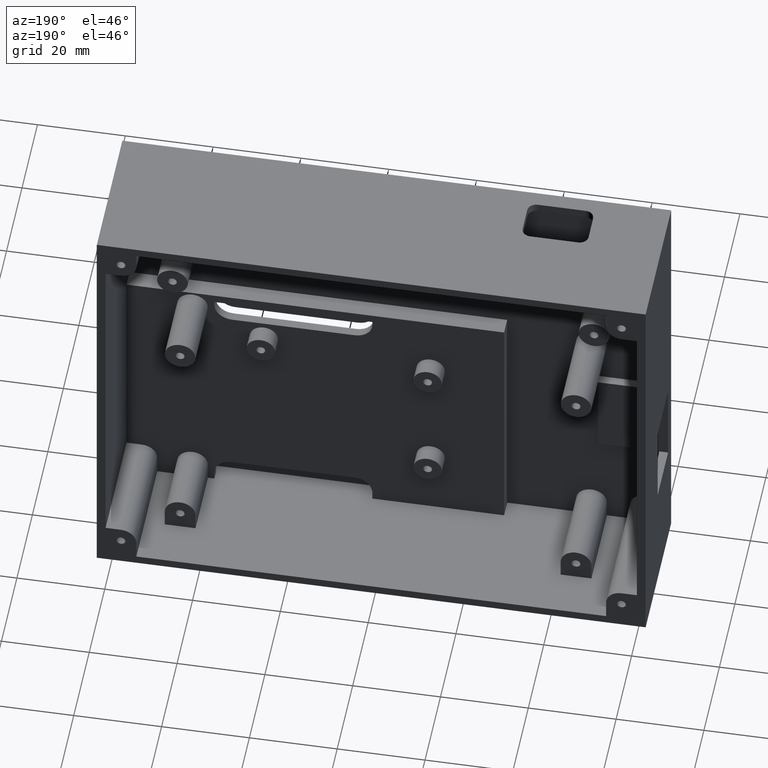
[diagram: clean part render]
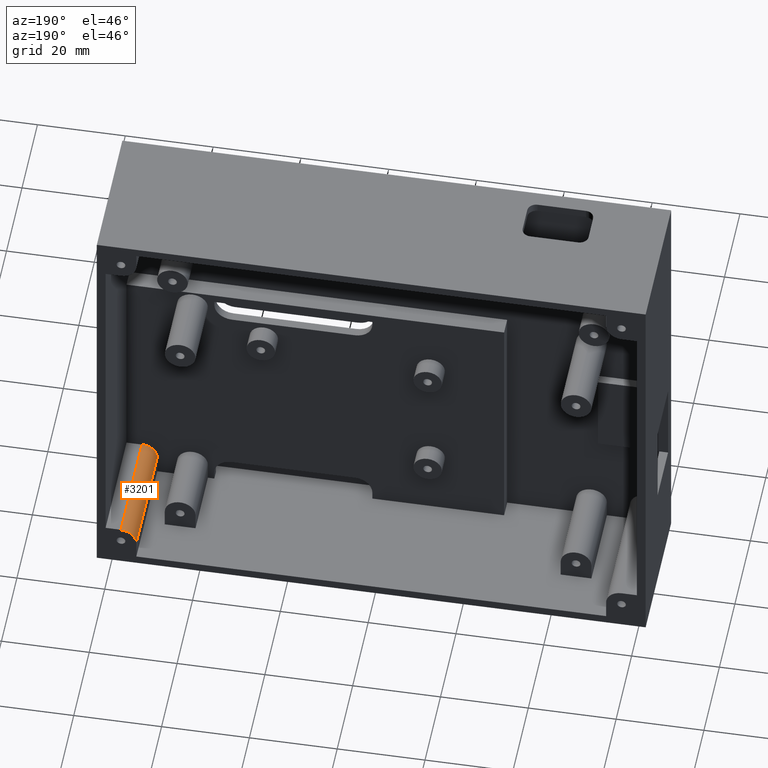
[diagram: same view with one face highlighted and labeled with its STEP entity id]
A machine part, auxiliary view. The second image highlights one B-rep face of the part: STEP entity #3201.
In plain terms, the highlighted cylindrical surface (edge-blend (fillet) strip) has radius 3.5 mm, axis along (-0, -1, -0).
Its self-contained STEP definition (entity closure, byte-faithful):
#170 = CIRCLE ( 'NONE', #2428, 3.500000000000003100 ) ;
#334 = DIRECTION ( 'NONE',  ( -0.0000000000000000000, -1.000000000000000000, -0.0000000000000000000 ) ) ;
#356 = VECTOR ( 'NONE', #2228, 1000.000000000000000 ) ;
#404 = ORIENTED_EDGE ( 'NONE', *, *, #1875, .T. ) ;
#409 = EDGE_LOOP ( 'NONE', ( #2570, #404, #4346, #2044 ) ) ;
#437 = CARTESIAN_POINT ( 'NONE',  ( 37.52967359050448700, 5.999999999999998200, -34.25222551928781900 ) ) ;
#632 = DIRECTION ( 'NONE',  ( 0.0000000000000000000, 0.0000000000000000000, -1.000000000000000000 ) ) ;
#860 = LINE ( 'NONE', #2414, #3856 ) ;
#959 = VERTEX_POINT ( 'NONE', #437 ) ;
#991 = AXIS2_PLACEMENT_3D ( 'NONE', #2026, #2714, #632 ) ;
#998 = EDGE_CURVE ( 'NONE', #1763, #2904, #170, .T. ) ;
#1020 = AXIS2_PLACEMENT_3D ( 'NONE', #2032, #4425, #2383 ) ;
#1187 = FACE_OUTER_BOUND ( 'NONE', #409, .T. ) ;
#1285 = CYLINDRICAL_SURFACE ( 'NONE', #991, 3.500000000000003100 ) ;
#1394 = VERTEX_POINT ( 'NONE', #1478 ) ;
#1478 = CARTESIAN_POINT ( 'NONE',  ( 34.02967359050448000, 6.000000000000000000, -37.75222551928781900 ) ) ;
#1610 = LINE ( 'NONE', #2211, #356 ) ;
#1763 = VERTEX_POINT ( 'NONE', #2036 ) ;
#1875 = EDGE_CURVE ( 'NONE', #1763, #1394, #1610, .T. ) ;
#2026 = CARTESIAN_POINT ( 'NONE',  ( 37.52967359050448700, 42.89949493661167400, -37.75222551928781900 ) ) ;
#2032 = CARTESIAN_POINT ( 'NONE',  ( 37.52967359050448700, 6.000000000000000000, -37.75222551928781900 ) ) ;
#2036 = CARTESIAN_POINT ( 'NONE',  ( 34.02967359050448000, 33.00000000000000000, -37.75222551928781900 ) ) ;
#2044 = ORIENTED_EDGE ( 'NONE', *, *, #3834, .F. ) ;
#2211 = CARTESIAN_POINT ( 'NONE',  ( 34.02967359050448000, 42.89949493661167400, -37.75222551928781900 ) ) ;
#2228 = DIRECTION ( 'NONE',  ( -0.0000000000000000000, -1.000000000000000000, -0.0000000000000000000 ) ) ;
#2383 = DIRECTION ( 'NONE',  ( 0.0000000000000000000, 0.0000000000000000000, 1.000000000000000000 ) ) ;
#2414 = CARTESIAN_POINT ( 'NONE',  ( 37.52967359050448700, 42.89949493661167400, -34.25222551928781900 ) ) ;
#2428 = AXIS2_PLACEMENT_3D ( 'NONE', #4211, #3166, #4179 ) ;
#2570 = ORIENTED_EDGE ( 'NONE', *, *, #998, .F. ) ;
#2628 = EDGE_CURVE ( 'NONE', #1394, #959, #2816, .T. ) ;
#2714 = DIRECTION ( 'NONE',  ( -0.0000000000000000000, -1.000000000000000000, -0.0000000000000000000 ) ) ;
#2816 = CIRCLE ( 'NONE', #1020, 3.500000000000003100 ) ;
#2904 = VERTEX_POINT ( 'NONE', #3234 ) ;
#3166 = DIRECTION ( 'NONE',  ( 0.0000000000000000000, 1.000000000000000000, 0.0000000000000000000 ) ) ;
#3201 = ADVANCED_FACE ( 'NONE', ( #1187 ), #1285, .T. ) ;
#3234 = CARTESIAN_POINT ( 'NONE',  ( 37.52967359050448700, 33.00000000000000000, -34.25222551928781900 ) ) ;
#3834 = EDGE_CURVE ( 'NONE', #2904, #959, #860, .T. ) ;
#3856 = VECTOR ( 'NONE', #334, 1000.000000000000000 ) ;
#4179 = DIRECTION ( 'NONE',  ( 0.0000000000000000000, 0.0000000000000000000, 1.000000000000000000 ) ) ;
#4211 = CARTESIAN_POINT ( 'NONE',  ( 37.52967359050448700, 33.00000000000000000, -37.75222551928781900 ) ) ;
#4346 = ORIENTED_EDGE ( 'NONE', *, *, #2628, .T. ) ;
#4425 = DIRECTION ( 'NONE',  ( 0.0000000000000000000, 1.000000000000000000, 0.0000000000000000000 ) ) ;